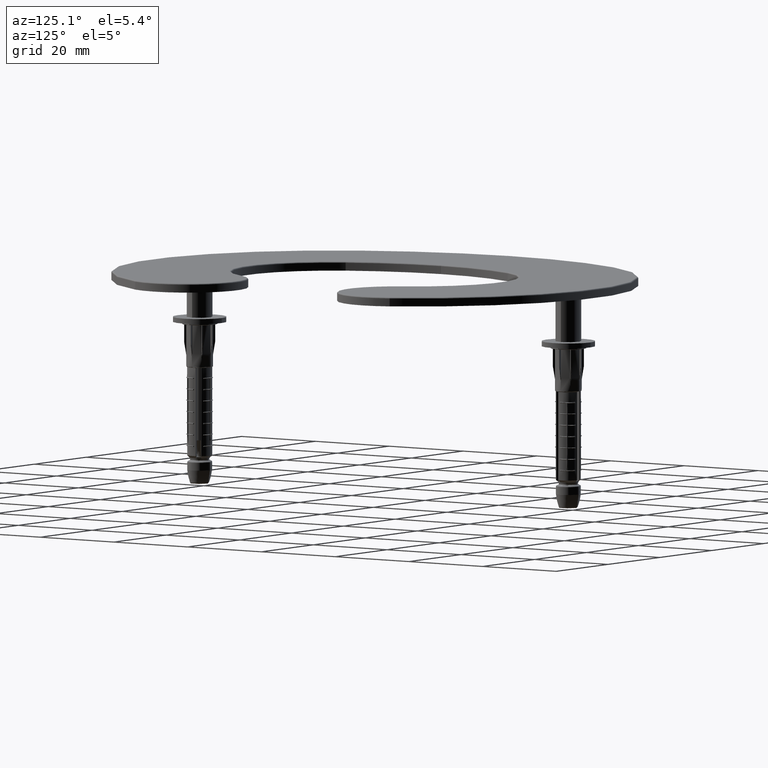
[diagram: clean part render]
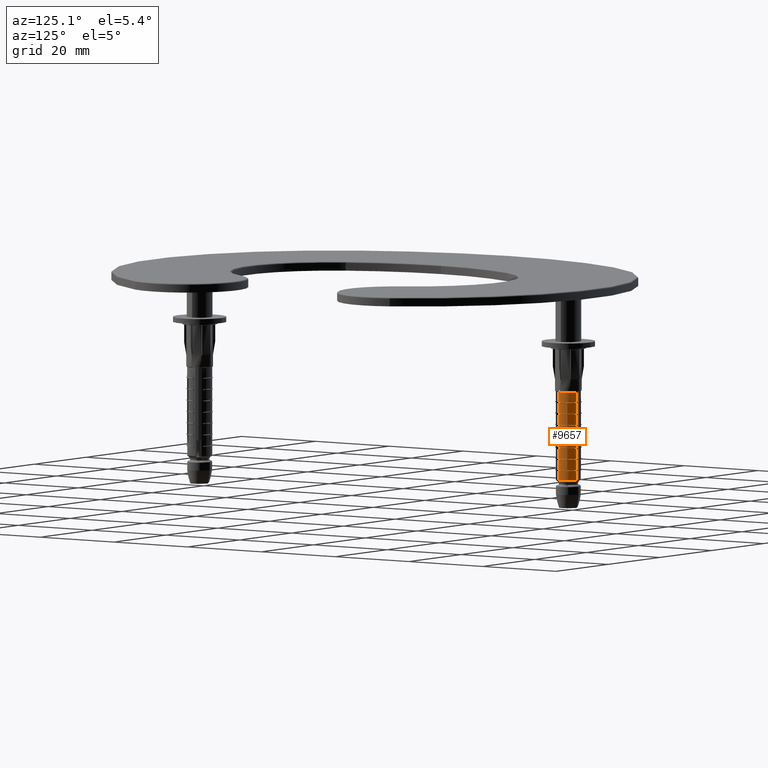
[diagram: same view with one face highlighted and labeled with its STEP entity id]
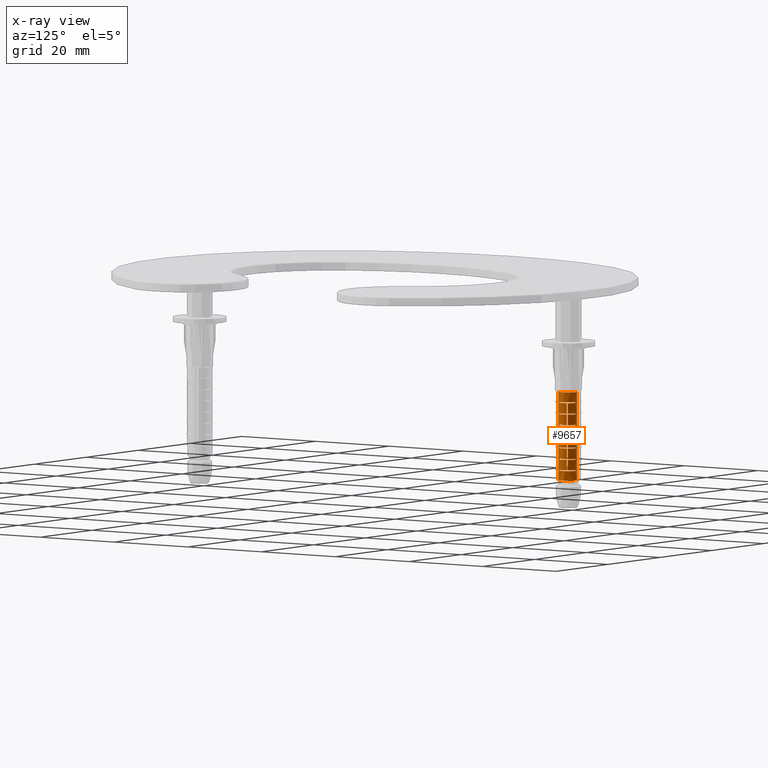
[diagram: x-ray of the same camera — body ghosted, the highlighted face saturated]
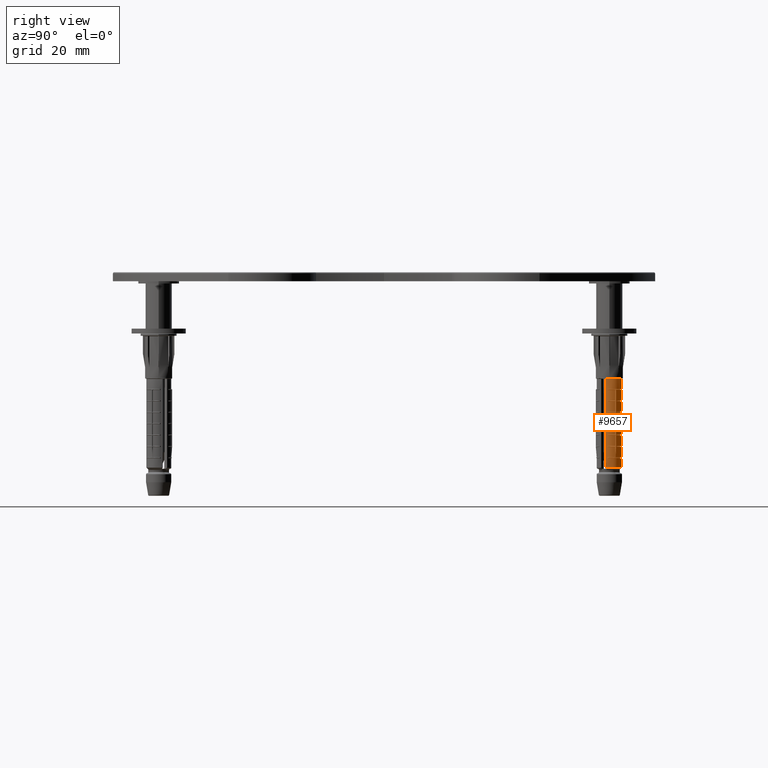
[diagram: same view with one face highlighted and labeled with its STEP entity id]
A machine part, auxiliary view. The second image highlights one B-rep face of the part: STEP entity #9657.
The next image is the same camera in x-ray: the body ghosted, the highlighted face saturated — about 0% of this face is hidden behind the body in this view.
A second angle (right view) of the same face is appended — the face is thin or edge-on in the first view.
In plain terms, the highlighted cylindrical surface (edge-blend (fillet) strip) has radius 2.8 mm, axis along (0, 0, -1).
Its self-contained STEP definition (entity closure, byte-faithful):
#8 = CARTESIAN_POINT ( 'NONE',  ( -1.016432192480563934, -2.608997048309781519, -19.89999999999999858 ) ) ;
#301 = CARTESIAN_POINT ( 'NONE',  ( -2.767673818475162140, 0.4242424242424545078, -20.10000000000000142 ) ) ;
#407 = VECTOR ( 'NONE', #25622, 1000.000000000000000 ) ;
#470 = VERTEX_POINT ( 'NONE', #18661 ) ;
#557 = DIRECTION ( 'NONE',  ( 0.8660254037844433705, 0.4999999999999920064, 0.000000000000000000 ) ) ;
#868 = DIRECTION ( 'NONE',  ( -4.540655609425253692E-18, 4.182044590197414905E-18, 1.000000000000000000 ) ) ;
#904 = VERTEX_POINT ( 'NONE', #19124 ) ;
#1011 = ORIENTED_EDGE ( 'NONE', *, *, #4333, .T. ) ;
#1043 = DIRECTION ( 'NONE',  ( 0.000000000000000000, 1.000000000000000000, 0.000000000000000000 ) ) ;
#1096 = EDGE_CURVE ( 'NONE', #25263, #36206, #3502, .T. ) ;
#1414 = VERTEX_POINT ( 'NONE', #28175 ) ;
#1519 = CIRCLE ( 'NONE', #24105, 2.799999999999999378 ) ;
#1659 = DIRECTION ( 'NONE',  ( 0.8660254037844433705, 0.4999999999999920064, 0.000000000000000000 ) ) ;
#1816 = EDGE_CURVE ( 'NONE', #21158, #7152, #6306, .T. ) ;
#1976 = VERTEX_POINT ( 'NONE', #23837 ) ;
#1983 = VECTOR ( 'NONE', #36676, 1000.000000000000000 ) ;
#2029 = VERTEX_POINT ( 'NONE', #15161 ) ;
#2221 = CARTESIAN_POINT ( 'NONE',  ( -2.361358431559908322, -1.504654896546355980, -17.37499999999999645 ) ) ;
#2265 = EDGE_CURVE ( 'NONE', #4691, #16984, #38292, .T. ) ;
#2311 = AXIS2_PLACEMENT_3D ( 'NONE', #7968, #26496, #17438 ) ;
#2346 = CARTESIAN_POINT ( 'NONE',  ( -2.675350868333212340, 0.8261342090173534602, -10.09999999999999787 ) ) ;
#2386 = VERTEX_POINT ( 'NONE', #34344 ) ;
#2472 = DIRECTION ( 'NONE',  ( 0.8660254037844433705, 0.4999999999999920064, 0.000000000000000000 ) ) ;
#2587 = CIRCLE ( 'NONE', #19328, 2.799999999999999378 ) ;
#2685 = CARTESIAN_POINT ( 'NONE',  ( -0.6222222222222226762, -2.729988920521994267, -36.00000000000000000 ) ) ;
#2766 = CARTESIAN_POINT ( 'NONE',  ( 1.141974885770451016E-16, -1.051784214434649850E-16, -25.14999999999999858 ) ) ;
#2810 = ORIENTED_EDGE ( 'NONE', *, *, #8846, .T. ) ;
#2853 = CARTESIAN_POINT ( 'NONE',  ( -0.6222222222222225652, -2.729988920521993823, -10.09999999999999787 ) ) ;
#2857 = VECTOR ( 'NONE', #29356, 1000.000000000000000 ) ;
#2865 = VECTOR ( 'NONE', #37926, 1000.000000000000000 ) ;
#2989 = EDGE_CURVE ( 'NONE', #1976, #16240, #6229, .T. ) ;
#3151 = DIRECTION ( 'NONE',  ( 0.000000000000000000, 6.803593328596414068E-18, 1.000000000000000000 ) ) ;
#3172 = VERTEX_POINT ( 'NONE', #26178 ) ;
#3324 = AXIS2_PLACEMENT_3D ( 'NONE', #13677, #35094, #35223 ) ;
#3398 = LINE ( 'NONE', #9795, #36820 ) ;
#3402 = EDGE_CURVE ( 'NONE', #11228, #28485, #13815, .T. ) ;
#3502 = LINE ( 'NONE', #10757, #9189 ) ;
#3566 = DIRECTION ( 'NONE',  ( -4.540655609425253692E-18, 4.182044590197414905E-18, 1.000000000000000000 ) ) ;
#3577 = EDGE_CURVE ( 'NONE', #23602, #22217, #5763, .T. ) ;
#3626 = EDGE_CURVE ( 'NONE', #17636, #15856, #1519, .T. ) ;
#3666 = LINE ( 'NONE', #34473, #21629 ) ;
#3816 = EDGE_LOOP ( 'NONE', ( #18561, #20490, #11437, #9603 ) ) ;
#4064 = CARTESIAN_POINT ( 'NONE',  ( 9.035904662756253783E-17, -8.322268734492854212E-17, -19.89999999999999858 ) ) ;
#4274 = CARTESIAN_POINT ( 'NONE',  ( -2.483748580117768778, -1.292668940898234364, -17.57499999999999929 ) ) ;
#4285 = CARTESIAN_POINT ( 'NONE',  ( -2.361358431559908322, -1.504654896546355980, -15.05000000000000071 ) ) ;
#4303 = DIRECTION ( 'NONE',  ( 0.000000000000000000, 6.803593328596414068E-18, 1.000000000000000000 ) ) ;
#4321 = LINE ( 'NONE', #10278, #14722 ) ;
#4326 = DIRECTION ( 'NONE',  ( -0.000000000000000000, -6.803593328596413297E-18, -1.000000000000000000 ) ) ;
#4333 = EDGE_CURVE ( 'NONE', #10365, #25432, #19835, .T. ) ;
#4379 = CARTESIAN_POINT ( 'NONE',  ( -1.016432192480563712, -2.608997048309782407, -36.00000000000000000 ) ) ;
#4431 = AXIS2_PLACEMENT_3D ( 'NONE', #16675, #26133, #25877 ) ;
#4497 = AXIS2_PLACEMENT_3D ( 'NONE', #20886, #23632, #26663 ) ;
#4545 = EDGE_CURVE ( 'NONE', #16240, #16409, #32558, .T. ) ;
#4559 = CARTESIAN_POINT ( 'NONE',  ( 7.889389121376377345E-17, -7.266302475468007665E-17, -17.37499999999999645 ) ) ;
#4578 = CARTESIAN_POINT ( 'NONE',  ( 1.018242020413613022E-16, -9.378234993517700759E-17, -22.42499999999999716 ) ) ;
#4582 = LINE ( 'NONE', #17520, #21988 ) ;
#4691 = VERTEX_POINT ( 'NONE', #9119 ) ;
#4838 = CARTESIAN_POINT ( 'NONE',  ( -2.767673818475162140, 0.4242424242424546743, -36.00000000000000000 ) ) ;
#5042 = EDGE_CURVE ( 'NONE', #13386, #1414, #26412, .T. ) ;
#5054 = ORIENTED_EDGE ( 'NONE', *, *, #16912, .T. ) ;
#5088 = DIRECTION ( 'NONE',  ( 0.8660254037844433705, 0.4999999999999920064, 0.000000000000000000 ) ) ;
#5168 = AXIS2_PLACEMENT_3D ( 'NONE', #21839, #15916, #34070 ) ;
#5172 = DIRECTION ( 'NONE',  ( -4.540655609425253692E-18, 4.182044590197414905E-18, 1.000000000000000000 ) ) ;
#5286 = CARTESIAN_POINT ( 'NONE',  ( -2.483748580117769222, -1.292668940898234808, -20.10000000000000142 ) ) ;
#5310 = CIRCLE ( 'NONE', #8137, 2.799999999999999822 ) ;
#5328 = ORIENTED_EDGE ( 'NONE', *, *, #18636, .T. ) ;
#5337 = CARTESIAN_POINT ( 'NONE',  ( -2.361358431559908766, -1.504654896546356424, -25.14999999999999858 ) ) ;
#5523 = VERTEX_POINT ( 'NONE', #35652 ) ;
#5763 = CIRCLE ( 'NONE', #4431, 2.799999999999999378 ) ;
#5811 = CARTESIAN_POINT ( 'NONE',  ( -2.483748580117769222, -1.292668940898234586, -19.89999999999999858 ) ) ;
#5885 = CARTESIAN_POINT ( 'NONE',  ( -2.767673818475161251, 0.4242424242424545633, -14.84999999999999964 ) ) ;
#5922 = CYLINDRICAL_SURFACE ( 'NONE', #17941, 2.799999999999999822 ) ;
#5923 = ORIENTED_EDGE ( 'NONE', *, *, #37827, .F. ) ;
#5958 = CIRCLE ( 'NONE', #29519, 2.799999999999999378 ) ;
#5995 = LINE ( 'NONE', #26680, #25251 ) ;
#6057 = B_SPLINE_CURVE_WITH_KNOTS ( 'NONE', 3,
 ( #11527, #14517, #36212, #24114, #24362, #36589, #6588, #33316 ),
 .UNSPECIFIED., .F., .F.,
 ( 4, 2, 2, 4 ),
 ( 0.000000000000000000, 0.0005836036533015558948, 0.0008754054799523338423, 0.001167207306603111790 ),
 .UNSPECIFIED. ) ;
#6141 = AXIS2_PLACEMENT_3D ( 'NONE', #11428, #17443, #20597 ) ;
#6207 = CIRCLE ( 'NONE', #21490, 2.799999999999999822 ) ;
#6229 = LINE ( 'NONE', #24729, #20877 ) ;
#6241 = CARTESIAN_POINT ( 'NONE',  ( 9.126717774944759751E-17, -8.405909626296804174E-17, -20.10000000000000142 ) ) ;
#6296 = DIRECTION ( 'NONE',  ( 0.8660254037844433705, 0.4999999999999920064, 0.000000000000000000 ) ) ;
#6306 = CIRCLE ( 'NONE', #12271, 2.799999999999999822 ) ;
#6509 = ORIENTED_EDGE ( 'NONE', *, *, #22331, .T. ) ;
#6588 = CARTESIAN_POINT ( 'NONE',  ( -2.384165743643222424, -1.468355839208442148, -27.37920234786985674 ) ) ;
#6593 = LINE ( 'NONE', #10348, #2865 ) ;
#6595 = DIRECTION ( 'NONE',  ( 0.000000000000000000, 6.803593328596414068E-18, 1.000000000000000000 ) ) ;
#6639 = AXIS2_PLACEMENT_3D ( 'NONE', #35896, #18125, #33134 ) ;
#6657 = ORIENTED_EDGE ( 'NONE', *, *, #27134, .T. ) ;
#6873 = CARTESIAN_POINT ( 'NONE',  ( -2.483748580117768778, -1.292668940898234364, -17.37499999999999645 ) ) ;
#6932 = CARTESIAN_POINT ( 'NONE',  ( -1.016432192480563490, -2.608997048309781519, -27.47499999999999076 ) ) ;
#6946 = CARTESIAN_POINT ( 'NONE',  ( -2.361358431559908322, -1.504654896546355980, -12.52500000000000213 ) ) ;
#7132 = VERTEX_POINT ( 'NONE', #35103 ) ;
#7152 = VERTEX_POINT ( 'NONE', #25899 ) ;
#7190 = AXIS2_PLACEMENT_3D ( 'NONE', #23387, #8144, #29200 ) ;
#7225 = CARTESIAN_POINT ( 'NONE',  ( -1.016432192480563934, -2.608997048309781963, -36.00000000000000000 ) ) ;
#7239 = CARTESIAN_POINT ( 'NONE',  ( 0.000000000000000000, -6.871629261882377608E-17, -10.09999999999999787 ) ) ;
#7312 = CARTESIAN_POINT ( 'NONE',  ( -2.474357888538981420, -1.310574868337798460, -27.08807541499556137 ) ) ;
#7335 = ORIENTED_EDGE ( 'NONE', *, *, #14913, .T. ) ;
#7380 = ORIENTED_EDGE ( 'NONE', *, *, #8217, .T. ) ;
#7401 = CARTESIAN_POINT ( 'NONE',  ( -2.361358431559908322, -1.504654896546355980, -17.57499999999999929 ) ) ;
#7425 = CIRCLE ( 'NONE', #5168, 2.799999999999999378 ) ;
#7433 = CARTESIAN_POINT ( 'NONE',  ( -2.455181414339814072, -1.346136777107122207, -27.47499999999999076 ) ) ;
#7434 = AXIS2_PLACEMENT_3D ( 'NONE', #31009, #868, #25317 ) ;
#7480 = DIRECTION ( 'NONE',  ( -0.000000000000000000, -6.803593328596414068E-18, -1.000000000000000000 ) ) ;
#7505 = VECTOR ( 'NONE', #20602, 1000.000000000000000 ) ;
#7564 = DIRECTION ( 'NONE',  ( -0.000000000000000000, -6.803593328596414068E-18, -1.000000000000000000 ) ) ;
#7567 = VERTEX_POINT ( 'NONE', #23097 ) ;
#7715 = ORIENTED_EDGE ( 'NONE', *, *, #22189, .T. ) ;
#7771 = EDGE_CURVE ( 'NONE', #25368, #24507, #12147, .T. ) ;
#7883 = DIRECTION ( 'NONE',  ( 0.000000000000000000, 6.803593328596414068E-18, 1.000000000000000000 ) ) ;
#7968 = CARTESIAN_POINT ( 'NONE',  ( 1.132893574551600419E-16, -1.043420125254254854E-16, -24.94999999999999574 ) ) ;
#8137 = AXIS2_PLACEMENT_3D ( 'NONE', #6241, #24286, #33240 ) ;
#8144 = DIRECTION ( 'NONE',  ( -4.540655609425253692E-18, 4.182044590197414905E-18, 1.000000000000000000 ) ) ;
#8206 = VERTEX_POINT ( 'NONE', #13110 ) ;
#8217 = EDGE_CURVE ( 'NONE', #2029, #19863, #10711, .T. ) ;
#8237 = LINE ( 'NONE', #37478, #14359 ) ;
#8277 = CARTESIAN_POINT ( 'NONE',  ( -2.767673818475161696, 0.4242424242424542857, -27.47499999999999076 ) ) ;
#8320 = ORIENTED_EDGE ( 'NONE', *, *, #12048, .T. ) ;
#8548 = EDGE_CURVE ( 'NONE', #11744, #3172, #5958, .T. ) ;
#8615 = DIRECTION ( 'NONE',  ( -0.000000000000000000, -6.803593328596414068E-18, -1.000000000000000000 ) ) ;
#8623 = VECTOR ( 'NONE', #17848, 1000.000000000000000 ) ;
#8671 = DIRECTION ( 'NONE',  ( -0.000000000000000000, -6.803593328596414068E-18, -1.000000000000000000 ) ) ;
#8674 = CARTESIAN_POINT ( 'NONE',  ( -2.361358431559909210, -1.504654896546356424, -36.00000000000000000 ) ) ;
#8675 = DIRECTION ( 'NONE',  ( -4.540655609425253692E-18, 4.182044590197414905E-18, 1.000000000000000000 ) ) ;
#8678 = DIRECTION ( 'NONE',  ( -4.540655609425253692E-18, 4.182044590197414905E-18, 1.000000000000000000 ) ) ;
#8831 = CARTESIAN_POINT ( 'NONE',  ( -2.424871130596440771, -1.399999999999977263, -12.32500000000000107 ) ) ;
#8846 = EDGE_CURVE ( 'NONE', #19465, #32061, #17245, .T. ) ;
#8891 = VERTEX_POINT ( 'NONE', #8 ) ;
#9119 = CARTESIAN_POINT ( 'NONE',  ( -2.767673818475161696, 0.4242424242424544523, -19.89999999999999858 ) ) ;
#9156 = VERTEX_POINT ( 'NONE', #2853 ) ;
#9189 = VECTOR ( 'NONE', #7564, 1000.000000000000000 ) ;
#9191 = CIRCLE ( 'NONE', #18955, 2.799999999999999822 ) ;
#9584 = ORIENTED_EDGE ( 'NONE', *, *, #12114, .T. ) ;
#9603 = ORIENTED_EDGE ( 'NONE', *, *, #14592, .T. ) ;
#9628 = CARTESIAN_POINT ( 'NONE',  ( 1.256626439908438660E-16, -1.157380840337134382E-16, -27.67499999999999361 ) ) ;
#9657 = ADVANCED_FACE ( 'NONE', ( #33217, #25176 ), #5922, .T. ) ;
#9752 = ORIENTED_EDGE ( 'NONE', *, *, #25674, .F. ) ;
#9777 = ORIENTED_EDGE ( 'NONE', *, *, #10400, .T. ) ;
#9795 = CARTESIAN_POINT ( 'NONE',  ( -2.483748580117769222, -1.292668940898235030, -36.00000000000000000 ) ) ;
#10033 = DIRECTION ( 'NONE',  ( 0.8660254037844433705, 0.4999999999999920064, 0.000000000000000000 ) ) ;
#10068 = CIRCLE ( 'NONE', #6639, 2.799999999999999822 ) ;
#10139 = EDGE_CURVE ( 'NONE', #34881, #5523, #22837, .T. ) ;
#10216 = CARTESIAN_POINT ( 'NONE',  ( -1.016432192480563712, -2.608997048309781963, -27.67499999999999361 ) ) ;
#10266 = DIRECTION ( 'NONE',  ( -4.540655609425253692E-18, 4.182044590197414905E-18, 1.000000000000000000 ) ) ;
#10278 = CARTESIAN_POINT ( 'NONE',  ( -2.767673818475162140, 0.4242424242424544523, -36.00000000000000000 ) ) ;
#10345 = LINE ( 'NONE', #25226, #407 ) ;
#10348 = CARTESIAN_POINT ( 'NONE',  ( -2.361358431559909210, -1.504654896546356424, -36.00000000000000000 ) ) ;
#10365 = VERTEX_POINT ( 'NONE', #22441 ) ;
#10384 = CARTESIAN_POINT ( 'NONE',  ( -2.483748580117769222, -1.292668940898234808, -26.31052289814997636 ) ) ;
#10400 = EDGE_CURVE ( 'NONE', #38363, #904, #20792, .T. ) ;
#10443 = EDGE_CURVE ( 'NONE', #24471, #13063, #21390, .T. ) ;
#10501 = DIRECTION ( 'NONE',  ( 0.8660254037844433705, 0.4999999999999920064, 0.000000000000000000 ) ) ;
#10510 = CARTESIAN_POINT ( 'NONE',  ( -2.483748580118025018, -1.292668940897744312, -26.50506116889642172 ) ) ;
#10550 = DIRECTION ( 'NONE',  ( 0.8660254037844433705, 0.4999999999999920064, 0.000000000000000000 ) ) ;
#10658 = ORIENTED_EDGE ( 'NONE', *, *, #28278, .T. ) ;
#10711 = CIRCLE ( 'NONE', #11122, 2.799999999999999378 ) ;
#10757 = CARTESIAN_POINT ( 'NONE',  ( -1.016432192480563712, -2.608997048309782407, -36.00000000000000000 ) ) ;
#11052 = CARTESIAN_POINT ( 'NONE',  ( -2.483748580117769222, -1.292668940898235030, -36.00000000000000000 ) ) ;
#11066 = AXIS2_PLACEMENT_3D ( 'NONE', #32182, #20091, #11456 ) ;
#11122 = AXIS2_PLACEMENT_3D ( 'NONE', #22571, #19395, #10501 ) ;
#11161 = ORIENTED_EDGE ( 'NONE', *, *, #7771, .T. ) ;
#11203 = CIRCLE ( 'NONE', #4497, 2.799999999999999378 ) ;
#11228 = VERTEX_POINT ( 'NONE', #20814 ) ;
#11252 = LINE ( 'NONE', #30026, #32380 ) ;
#11272 = DIRECTION ( 'NONE',  ( 0.8660254037844433705, 0.4999999999999920064, 0.000000000000000000 ) ) ;
#11323 = DIRECTION ( 'NONE',  ( -4.540655609425253692E-18, 4.182044590197414905E-18, 1.000000000000000000 ) ) ;
#11342 = DIRECTION ( 'NONE',  ( -4.540655609425253692E-18, 4.182044590197414905E-18, 1.000000000000000000 ) ) ;
#11354 = CARTESIAN_POINT ( 'NONE',  ( -1.016432192480563490, -2.608997048309781519, -12.32500000000000107 ) ) ;
#11428 = CARTESIAN_POINT ( 'NONE',  ( 0.000000000000000000, -2.024069015257432827E-16, -29.74999999999999645 ) ) ;
#11437 = ORIENTED_EDGE ( 'NONE', *, *, #28332, .T. ) ;
#11456 = DIRECTION ( 'NONE',  ( 0.8660254037844433705, 0.4999999999999920064, 0.000000000000000000 ) ) ;
#11527 = CARTESIAN_POINT ( 'NONE',  ( -2.361358431559908766, -1.504654896546356424, -26.31052289814725853 ) ) ;
#11532 = EDGE_CURVE ( 'NONE', #28485, #7132, #31699, .T. ) ;
#11710 = EDGE_CURVE ( 'NONE', #29405, #32976, #5310, .T. ) ;
#11729 = DIRECTION ( 'NONE',  ( 0.8660254037844433705, 0.4999999999999920064, 0.000000000000000000 ) ) ;
#11744 = VERTEX_POINT ( 'NONE', #5885 ) ;
#11787 = CARTESIAN_POINT ( 'NONE',  ( -2.483748580117769222, -1.292668940898234808, -25.14999999999999858 ) ) ;
#12048 = EDGE_CURVE ( 'NONE', #32061, #27368, #19422, .T. ) ;
#12114 = EDGE_CURVE ( 'NONE', #7567, #8891, #6207, .T. ) ;
#12143 = CARTESIAN_POINT ( 'NONE',  ( -1.016432192480563934, -2.608997048309782407, -22.62500000000000000 ) ) ;
#12147 = LINE ( 'NONE', #36462, #23389 ) ;
#12229 = CIRCLE ( 'NONE', #26395, 2.799999999999999822 ) ;
#12271 = AXIS2_PLACEMENT_3D ( 'NONE', #4578, #21940, #10550 ) ;
#12404 = CARTESIAN_POINT ( 'NONE',  ( -2.460687915453515284, -1.336044528726880731, -27.57499999999999574 ) ) ;
#12451 = EDGE_CURVE ( 'NONE', #470, #24471, #4321, .T. ) ;
#12955 = ORIENTED_EDGE ( 'NONE', *, *, #33119, .F. ) ;
#13063 = VERTEX_POINT ( 'NONE', #28963 ) ;
#13110 = CARTESIAN_POINT ( 'NONE',  ( -0.6222222222222225652, -2.729988920521993379, -29.74999999999999645 ) ) ;
#13134 = LINE ( 'NONE', #22707, #20178 ) ;
#13300 = DIRECTION ( 'NONE',  ( -0.000000000000000000, -6.803593328596414068E-18, -1.000000000000000000 ) ) ;
#13386 = VERTEX_POINT ( 'NONE', #28528 ) ;
#13677 = CARTESIAN_POINT ( 'NONE',  ( 1.132893574551600419E-16, -1.043420125254254854E-16, -24.94999999999999574 ) ) ;
#13815 = LINE ( 'NONE', #36534, #1983 ) ;
#14181 = CARTESIAN_POINT ( 'NONE',  ( 6.833686692185005643E-17, -6.293977108247109848E-17, -15.05000000000000071 ) ) ;
#14285 = CARTESIAN_POINT ( 'NONE',  ( -2.767673818475161251, 0.4242424242424545078, -17.37499999999999645 ) ) ;
#14312 = AXIS2_PLACEMENT_3D ( 'NONE', #26862, #35918, #23552 ) ;
#14359 = VECTOR ( 'NONE', #7883, 1000.000000000000000 ) ;
#14517 = CARTESIAN_POINT ( 'NONE',  ( -2.361358431559801296, -1.504654896546524068, -26.50506116889412667 ) ) ;
#14518 = CIRCLE ( 'NONE', #6141, 2.799999999999999822 ) ;
#14592 = EDGE_CURVE ( 'NONE', #24557, #14986, #23146, .T. ) ;
#14675 = EDGE_CURVE ( 'NONE', #470, #20100, #16545, .T. ) ;
#14722 = VECTOR ( 'NONE', #4303, 1000.000000000000000 ) ;
#14801 = CARTESIAN_POINT ( 'NONE',  ( -2.483748580117769222, -1.292668940898234808, -22.42499999999999716 ) ) ;
#14913 = EDGE_CURVE ( 'NONE', #19863, #22217, #30656, .T. ) ;
#14986 = VERTEX_POINT ( 'NONE', #25894 ) ;
#15047 = ORIENTED_EDGE ( 'NONE', *, *, #3402, .T. ) ;
#15161 = CARTESIAN_POINT ( 'NONE',  ( -2.361358431559908322, -1.504654896546355980, -14.84999999999999964 ) ) ;
#15398 = DIRECTION ( 'NONE',  ( -4.540655609425253692E-18, 4.182044590197414905E-18, 1.000000000000000000 ) ) ;
#15542 = EDGE_CURVE ( 'NONE', #23602, #17636, #6593, .T. ) ;
#15673 = LINE ( 'NONE', #2685, #34047 ) ;
#15716 = ORIENTED_EDGE ( 'NONE', *, *, #28322, .T. ) ;
#15856 = VERTEX_POINT ( 'NONE', #38782 ) ;
#15908 = LINE ( 'NONE', #23741, #26257 ) ;
#15916 = DIRECTION ( 'NONE',  ( -4.540655609425253692E-18, 4.182044590197414905E-18, 1.000000000000000000 ) ) ;
#15929 = EDGE_CURVE ( 'NONE', #13386, #21158, #19778, .T. ) ;
#16204 = DIRECTION ( 'NONE',  ( -4.540655609425253692E-18, 4.182044590197414905E-18, 1.000000000000000000 ) ) ;
#16240 = VERTEX_POINT ( 'NONE', #14285 ) ;
#16264 = AXIS2_PLACEMENT_3D ( 'NONE', #4064, #28042, #10033 ) ;
#16326 = CARTESIAN_POINT ( 'NONE',  ( 5.687171150805130437E-17, -5.238010849222262684E-17, -12.52500000000000213 ) ) ;
#16409 = VERTEX_POINT ( 'NONE', #6873 ) ;
#16438 = VERTEX_POINT ( 'NONE', #27682 ) ;
#16545 = CIRCLE ( 'NONE', #22299, 2.799999999999999822 ) ;
#16564 = CIRCLE ( 'NONE', #20536, 2.799999999999999822 ) ;
#16592 = ORIENTED_EDGE ( 'NONE', *, *, #15929, .T. ) ;
#16675 = CARTESIAN_POINT ( 'NONE',  ( 6.833686692185005643E-17, -6.293977108247109848E-17, -15.05000000000000071 ) ) ;
#16842 = VERTEX_POINT ( 'NONE', #7401 ) ;
#16853 = AXIS2_PLACEMENT_3D ( 'NONE', #26689, #8678, #11729 ) ;
#16912 = EDGE_CURVE ( 'NONE', #16842, #7567, #27757, .T. ) ;
#16933 = CARTESIAN_POINT ( 'NONE',  ( -1.016432192480563934, -2.608997048309782407, -12.52500000000000213 ) ) ;
#16984 = VERTEX_POINT ( 'NONE', #5811 ) ;
#17193 = ORIENTED_EDGE ( 'NONE', *, *, #3626, .T. ) ;
#17245 = CIRCLE ( 'NONE', #37056, 2.799999999999999822 ) ;
#17290 = CIRCLE ( 'NONE', #7190, 2.799999999999999378 ) ;
#17392 = ORIENTED_EDGE ( 'NONE', *, *, #35648, .F. ) ;
#17420 = CARTESIAN_POINT ( 'NONE',  ( 9.035904662756253783E-17, -8.322268734492854212E-17, -19.89999999999999858 ) ) ;
#17438 = DIRECTION ( 'NONE',  ( 0.8660254037844433705, 0.4999999999999920064, 0.000000000000000000 ) ) ;
#17443 = DIRECTION ( 'NONE',  ( 0.000000000000000000, 6.803593328596413297E-18, 1.000000000000000000 ) ) ;
#17520 = CARTESIAN_POINT ( 'NONE',  ( -2.767673818475162140, 0.4242424242424543968, -36.00000000000000000 ) ) ;
#17576 = CARTESIAN_POINT ( 'NONE',  ( -2.361358431559909210, -1.504654896546356424, -36.00000000000000000 ) ) ;
#17636 = VERTEX_POINT ( 'NONE', #2221 ) ;
#17848 = DIRECTION ( 'NONE',  ( 0.000000000000000000, 6.803593328596414068E-18, 1.000000000000000000 ) ) ;
#17887 = CARTESIAN_POINT ( 'NONE',  ( -2.767673818475162140, 0.4242424242424543412, -27.67499999999999361 ) ) ;
#17929 = CARTESIAN_POINT ( 'NONE',  ( -2.393379353113320729, -1.453181087163902374, -27.47499999999999076 ) ) ;
#17941 = AXIS2_PLACEMENT_3D ( 'NONE', #38508, #32457, #26667 ) ;
#18125 = DIRECTION ( 'NONE',  ( -4.540655609425253692E-18, 4.182044590197414905E-18, 1.000000000000000000 ) ) ;
#18135 = EDGE_CURVE ( 'NONE', #15856, #20499, #15908, .T. ) ;
#18239 = EDGE_CURVE ( 'NONE', #19401, #31007, #4582, .T. ) ;
#18285 = DIRECTION ( 'NONE',  ( 0.000000000000000000, 6.803593328596414068E-18, 1.000000000000000000 ) ) ;
#18298 = DIRECTION ( 'NONE',  ( -5.892084659582852829E-18, -1.020538999289456486E-17, -1.000000000000000000 ) ) ;
#18428 = DIRECTION ( 'NONE',  ( 0.8660254037844433705, 0.4999999999999920064, 0.000000000000000000 ) ) ;
#18555 = VECTOR ( 'NONE', #21652, 1000.000000000000000 ) ;
#18561 = ORIENTED_EDGE ( 'NONE', *, *, #29230, .T. ) ;
#18583 = ORIENTED_EDGE ( 'NONE', *, *, #37765, .F. ) ;
#18636 = EDGE_CURVE ( 'NONE', #25432, #25263, #11203, .T. ) ;
#18661 = CARTESIAN_POINT ( 'NONE',  ( -2.767673818475162140, 0.4242424242424544523, -25.14999999999999858 ) ) ;
#18685 = DIRECTION ( 'NONE',  ( 0.8660254037844433705, 0.4999999999999920064, 0.000000000000000000 ) ) ;
#18762 = ORIENTED_EDGE ( 'NONE', *, *, #29093, .T. ) ;
#18800 = ORIENTED_EDGE ( 'NONE', *, *, #18239, .T. ) ;
#18927 = LINE ( 'NONE', #11052, #8623 ) ;
#18955 = AXIS2_PLACEMENT_3D ( 'NONE', #25199, #10266, #31279 ) ;
#18989 = CARTESIAN_POINT ( 'NONE',  ( -2.483748580117769222, -1.292668940898235252, -36.00000000000000000 ) ) ;
#19124 = CARTESIAN_POINT ( 'NONE',  ( -2.483748580117769222, -1.292668940898234808, -26.31052289814997636 ) ) ;
#19148 = EDGE_CURVE ( 'NONE', #35519, #10365, #19605, .T. ) ;
#19206 = ORIENTED_EDGE ( 'NONE', *, *, #37025, .T. ) ;
#19328 = AXIS2_PLACEMENT_3D ( 'NONE', #16326, #24740, #18685 ) ;
#19329 = ORIENTED_EDGE ( 'NONE', *, *, #15542, .T. ) ;
#19342 = ORIENTED_EDGE ( 'NONE', *, *, #31025, .F. ) ;
#19350 = DIRECTION ( 'NONE',  ( 0.8660254037844433705, 0.4999999999999920064, 0.000000000000000000 ) ) ;
#19395 = DIRECTION ( 'NONE',  ( -4.540655609425253692E-18, 4.182044590197414905E-18, 1.000000000000000000 ) ) ;
#19397 = CIRCLE ( 'NONE', #34383, 2.799999999999999822 ) ;
#19401 = VERTEX_POINT ( 'NONE', #31469 ) ;
#19422 = LINE ( 'NONE', #4379, #23211 ) ;
#19465 = VERTEX_POINT ( 'NONE', #17929 ) ;
#19605 = LINE ( 'NONE', #31332, #29507 ) ;
#19628 = ORIENTED_EDGE ( 'NONE', *, *, #24124, .T. ) ;
#19714 = CARTESIAN_POINT ( 'NONE',  ( -2.767673818475162140, 0.4242424242424547298, -12.52500000000000213 ) ) ;
#19778 = LINE ( 'NONE', #8674, #31074 ) ;
#19835 = CIRCLE ( 'NONE', #38735, 2.799999999999999378 ) ;
#19863 = VERTEX_POINT ( 'NONE', #27742 ) ;
#20091 = DIRECTION ( 'NONE',  ( -4.540655609425253692E-18, 4.182044590197414905E-18, 1.000000000000000000 ) ) ;
#20100 = VERTEX_POINT ( 'NONE', #11787 ) ;
#20178 = VECTOR ( 'NONE', #29028, 1000.000000000000000 ) ;
#20180 = VERTEX_POINT ( 'NONE', #23449 ) ;
#20285 = CARTESIAN_POINT ( 'NONE',  ( 1.247545128689588310E-16, -1.149016751156739262E-16, -27.47499999999999076 ) ) ;
#20427 = CARTESIAN_POINT ( 'NONE',  ( -2.483748580117768778, -1.292668940898234364, -12.52500000000000213 ) ) ;
#20490 = ORIENTED_EDGE ( 'NONE', *, *, #37337, .T. ) ;
#20499 = VERTEX_POINT ( 'NONE', #33180 ) ;
#20536 = AXIS2_PLACEMENT_3D ( 'NONE', #26686, #8675, #2472 ) ;
#20597 = DIRECTION ( 'NONE',  ( 0.000000000000000000, 1.000000000000000000, 0.000000000000000000 ) ) ;
#20602 = DIRECTION ( 'NONE',  ( -0.000000000000000000, -6.803593328596414068E-18, -1.000000000000000000 ) ) ;
#20792 = B_SPLINE_CURVE_WITH_KNOTS ( 'NONE', 3,
 ( #7433, #37302, #25303, #7312, #31641, #28500, #10510, #10384 ),
 .UNSPECIFIED., .F., .F.,
 ( 4, 2, 2, 4 ),
 ( 0.000000000000000000, 0.0002919254474833850982, 0.0005838508949667701965, 0.001167701789933529768 ),
 .UNSPECIFIED. ) ;
#20814 = CARTESIAN_POINT ( 'NONE',  ( -2.361358431559908766, -1.504654896546356424, -22.62500000000000000 ) ) ;
#20877 = VECTOR ( 'NONE', #3151, 1000.000000000000000 ) ;
#20886 = CARTESIAN_POINT ( 'NONE',  ( 5.596358038616625703E-17, -5.154369957418313338E-17, -12.32500000000000107 ) ) ;
#21050 = CARTESIAN_POINT ( 'NONE',  ( -2.455181414339814072, -1.346136777107122207, -27.47499999999999076 ) ) ;
#21068 = DIRECTION ( 'NONE',  ( -4.540655609425253692E-18, 4.182044590197414905E-18, 1.000000000000000000 ) ) ;
#21139 = CIRCLE ( 'NONE', #16853, 2.799999999999999822 ) ;
#21158 = VERTEX_POINT ( 'NONE', #25240 ) ;
#21172 = LINE ( 'NONE', #17576, #7505 ) ;
#21289 = EDGE_CURVE ( 'NONE', #20180, #19465, #6057, .T. ) ;
#21390 = CIRCLE ( 'NONE', #2311, 2.799999999999999822 ) ;
#21490 = AXIS2_PLACEMENT_3D ( 'NONE', #17420, #5172, #11272 ) ;
#21629 = VECTOR ( 'NONE', #13300, 1000.000000000000000 ) ;
#21652 = DIRECTION ( 'NONE',  ( 0.000000000000000000, 6.803593328596414068E-18, 1.000000000000000000 ) ) ;
#21786 = LINE ( 'NONE', #12404, #32118 ) ;
#21831 = ORIENTED_EDGE ( 'NONE', *, *, #35528, .T. ) ;
#21839 = CARTESIAN_POINT ( 'NONE',  ( 5.687171150805130437E-17, -5.238010849222262684E-17, -12.52500000000000213 ) ) ;
#21871 = EDGE_CURVE ( 'NONE', #26474, #32976, #24229, .T. ) ;
#21940 = DIRECTION ( 'NONE',  ( -4.540655609425253692E-18, 4.182044590197414905E-18, 1.000000000000000000 ) ) ;
#21988 = VECTOR ( 'NONE', #18285, 1000.000000000000000 ) ;
#22189 = EDGE_CURVE ( 'NONE', #34881, #11744, #22791, .T. ) ;
#22217 = VERTEX_POINT ( 'NONE', #38239 ) ;
#22261 = CARTESIAN_POINT ( 'NONE',  ( 5.596358038616625703E-17, -5.154369957418313338E-17, -12.32500000000000107 ) ) ;
#22299 = AXIS2_PLACEMENT_3D ( 'NONE', #2766, #21068, #6296 ) ;
#22331 = EDGE_CURVE ( 'NONE', #31007, #26474, #9191, .T. ) ;
#22391 = ORIENTED_EDGE ( 'NONE', *, *, #3577, .F. ) ;
#22441 = CARTESIAN_POINT ( 'NONE',  ( -2.767673818475161251, 0.4242424242424545633, -12.32500000000000107 ) ) ;
#22550 = VERTEX_POINT ( 'NONE', #5337 ) ;
#22571 = CARTESIAN_POINT ( 'NONE',  ( 6.742873579996503373E-17, -6.210336216443161118E-17, -14.84999999999999964 ) ) ;
#22707 = CARTESIAN_POINT ( 'NONE',  ( -2.767673818475162140, 0.4242424242424544523, -36.00000000000000000 ) ) ;
#22791 = LINE ( 'NONE', #4838, #37853 ) ;
#22837 = CIRCLE ( 'NONE', #36590, 2.799999999999999378 ) ;
#22886 = ORIENTED_EDGE ( 'NONE', *, *, #19148, .T. ) ;
#23097 = CARTESIAN_POINT ( 'NONE',  ( -2.361358431559908766, -1.504654896546356202, -19.89999999999999858 ) ) ;
#23120 = ORIENTED_EDGE ( 'NONE', *, *, #8548, .T. ) ;
#23146 = LINE ( 'NONE', #38428, #2857 ) ;
#23211 = VECTOR ( 'NONE', #8615, 1000.000000000000000 ) ;
#23296 = ORIENTED_EDGE ( 'NONE', *, *, #5042, .F. ) ;
#23387 = CARTESIAN_POINT ( 'NONE',  ( 7.980202233564885778E-17, -7.349943367271956395E-17, -17.57499999999999929 ) ) ;
#23389 = VECTOR ( 'NONE', #6595, 1000.000000000000000 ) ;
#23449 = CARTESIAN_POINT ( 'NONE',  ( -2.361358431559908766, -1.504654896546356424, -26.31052289814725853 ) ) ;
#23552 = DIRECTION ( 'NONE',  ( 0.8660254037844433705, 0.4999999999999920064, 0.000000000000000000 ) ) ;
#23592 = CARTESIAN_POINT ( 'NONE',  ( 6.742873579996503373E-17, -6.210336216443161118E-17, -14.84999999999999964 ) ) ;
#23602 = VERTEX_POINT ( 'NONE', #4285 ) ;
#23632 = DIRECTION ( 'NONE',  ( -4.540655609425253692E-18, 4.182044590197414905E-18, 1.000000000000000000 ) ) ;
#23737 = DIRECTION ( 'NONE',  ( 0.000000000000000000, 6.803593328596414068E-18, 1.000000000000000000 ) ) ;
#23741 = CARTESIAN_POINT ( 'NONE',  ( -1.016432192480563934, -2.608997048309781963, -36.00000000000000000 ) ) ;
#23771 = EDGE_CURVE ( 'NONE', #904, #20100, #18927, .T. ) ;
#23837 = CARTESIAN_POINT ( 'NONE',  ( -2.767673818475162140, 0.4242424242424546743, -17.57499999999999929 ) ) ;
#23852 = ORIENTED_EDGE ( 'NONE', *, *, #12451, .T. ) ;
#24095 = CARTESIAN_POINT ( 'NONE',  ( -2.361358431559909210, -1.504654896546356424, -36.00000000000000000 ) ) ;
#24105 = AXIS2_PLACEMENT_3D ( 'NONE', #4559, #25587, #1659 ) ;
#24114 = CARTESIAN_POINT ( 'NONE',  ( -2.369438809451833272, -1.491903281495504885, -26.99099585964414771 ) ) ;
#24124 = EDGE_CURVE ( 'NONE', #16409, #5523, #3398, .T. ) ;
#24229 = LINE ( 'NONE', #18989, #18555 ) ;
#24236 = ORIENTED_EDGE ( 'NONE', *, *, #18135, .T. ) ;
#24286 = DIRECTION ( 'NONE',  ( -4.540655609425253692E-18, 4.182044590197414905E-18, 1.000000000000000000 ) ) ;
#24362 = CARTESIAN_POINT ( 'NONE',  ( -2.372170073811461055, -1.487569355360297108, -27.08807541499458083 ) ) ;
#24471 = VERTEX_POINT ( 'NONE', #31566 ) ;
#24507 = VERTEX_POINT ( 'NONE', #8277 ) ;
#24557 = VERTEX_POINT ( 'NONE', #2346 ) ;
#24569 = EDGE_CURVE ( 'NONE', #19401, #2386, #16564, .T. ) ;
#24611 = ORIENTED_EDGE ( 'NONE', *, *, #24569, .F. ) ;
#24729 = CARTESIAN_POINT ( 'NONE',  ( -2.767673818475162140, 0.4242424242424546188, -36.00000000000000000 ) ) ;
#24740 = DIRECTION ( 'NONE',  ( -4.540655609425253692E-18, 4.182044590197414905E-18, 1.000000000000000000 ) ) ;
#25176 = FACE_BOUND ( 'NONE', #29433, .T. ) ;
#25199 = CARTESIAN_POINT ( 'NONE',  ( 1.018242020413613022E-16, -9.378234993517700759E-17, -22.42499999999999716 ) ) ;
#25226 = CARTESIAN_POINT ( 'NONE',  ( -1.016432192480564156, -2.608997048309781963, -36.00000000000000000 ) ) ;
#25240 = CARTESIAN_POINT ( 'NONE',  ( -2.361358431559908766, -1.504654896546356424, -22.42499999999999716 ) ) ;
#25251 = VECTOR ( 'NONE', #8671, 1000.000000000000000 ) ;
#25255 = ORIENTED_EDGE ( 'NONE', *, *, #30834, .F. ) ;
#25263 = VERTEX_POINT ( 'NONE', #11354 ) ;
#25303 = CARTESIAN_POINT ( 'NONE',  ( -2.467480486578948362, -1.323477802777908829, -27.28203077829557088 ) ) ;
#25317 = DIRECTION ( 'NONE',  ( 0.8660254037844433705, 0.4999999999999920064, 0.000000000000000000 ) ) ;
#25368 = VERTEX_POINT ( 'NONE', #17887 ) ;
#25432 = VERTEX_POINT ( 'NONE', #8831 ) ;
#25467 = DIRECTION ( 'NONE',  ( 0.000000000000000000, 6.803593328596414068E-18, 1.000000000000000000 ) ) ;
#25587 = DIRECTION ( 'NONE',  ( -4.540655609425253692E-18, 4.182044590197414905E-18, 1.000000000000000000 ) ) ;
#25622 = DIRECTION ( 'NONE',  ( -0.000000000000000000, -6.803593328596414068E-18, -1.000000000000000000 ) ) ;
#25674 = EDGE_CURVE ( 'NONE', #11228, #36675, #37694, .T. ) ;
#25877 = DIRECTION ( 'NONE',  ( 0.8660254037844433705, 0.4999999999999920064, 0.000000000000000000 ) ) ;
#25894 = CARTESIAN_POINT ( 'NONE',  ( -2.675350868333212340, 0.8261342090173533492, -29.74999999999999645 ) ) ;
#25899 = CARTESIAN_POINT ( 'NONE',  ( -1.016432192480563712, -2.608997048309781963, -22.42499999999999716 ) ) ;
#25958 = ORIENTED_EDGE ( 'NONE', *, *, #28511, .F. ) ;
#26133 = DIRECTION ( 'NONE',  ( -4.540655609425253692E-18, 4.182044590197414905E-18, 1.000000000000000000 ) ) ;
#26178 = CARTESIAN_POINT ( 'NONE',  ( -2.483748580117768778, -1.292668940898234364, -14.84999999999999964 ) ) ;
#26257 = VECTOR ( 'NONE', #33467, 1000.000000000000000 ) ;
#26395 = AXIS2_PLACEMENT_3D ( 'NONE', #7239, #4326, #1043 ) ;
#26412 = CIRCLE ( 'NONE', #11066, 2.799999999999999822 ) ;
#26474 = VERTEX_POINT ( 'NONE', #14801 ) ;
#26496 = DIRECTION ( 'NONE',  ( -4.540655609425253692E-18, 4.182044590197414905E-18, 1.000000000000000000 ) ) ;
#26663 = DIRECTION ( 'NONE',  ( 0.8660254037844433705, 0.4999999999999920064, 0.000000000000000000 ) ) ;
#26667 = DIRECTION ( 'NONE',  ( 0.000000000000000000, 1.000000000000000000, 0.000000000000000000 ) ) ;
#26680 = CARTESIAN_POINT ( 'NONE',  ( -1.016432192480563712, -2.608997048309782407, -36.00000000000000000 ) ) ;
#26686 = CARTESIAN_POINT ( 'NONE',  ( 1.027323331632463865E-16, -9.461875885321650721E-17, -22.62500000000000000 ) ) ;
#26689 = CARTESIAN_POINT ( 'NONE',  ( 1.141974885770451016E-16, -1.051784214434649850E-16, -25.14999999999999858 ) ) ;
#26862 = CARTESIAN_POINT ( 'NONE',  ( 7.889389121376377345E-17, -7.266302475468007665E-17, -17.37499999999999645 ) ) ;
#26978 = AXIS2_PLACEMENT_3D ( 'NONE', #32081, #11342, #32599 ) ;
#27014 = DIRECTION ( 'NONE',  ( -0.000000000000000000, -6.803593328596414068E-18, -1.000000000000000000 ) ) ;
#27092 = DIRECTION ( 'NONE',  ( -0.000000000000000000, -6.803593328596414068E-18, -1.000000000000000000 ) ) ;
#27134 = EDGE_CURVE ( 'NONE', #38513, #2029, #21172, .T. ) ;
#27368 = VERTEX_POINT ( 'NONE', #10216 ) ;
#27371 = ORIENTED_EDGE ( 'NONE', *, *, #23771, .T. ) ;
#27441 = ORIENTED_EDGE ( 'NONE', *, *, #11532, .T. ) ;
#27682 = CARTESIAN_POINT ( 'NONE',  ( -1.016432192480563712, -2.608997048309781963, -25.14999999999999858 ) ) ;
#27742 = CARTESIAN_POINT ( 'NONE',  ( -1.016432192480563712, -2.608997048309781519, -14.84999999999999964 ) ) ;
#27757 = LINE ( 'NONE', #24095, #28703 ) ;
#28042 = DIRECTION ( 'NONE',  ( -4.540655609425253692E-18, 4.182044590197414905E-18, 1.000000000000000000 ) ) ;
#28175 = CARTESIAN_POINT ( 'NONE',  ( -1.016432192480564378, -2.608997048309782407, -20.10000000000000142 ) ) ;
#28278 = EDGE_CURVE ( 'NONE', #22550, #20180, #3666, .T. ) ;
#28322 = EDGE_CURVE ( 'NONE', #8891, #1414, #10345, .T. ) ;
#28332 = EDGE_CURVE ( 'NONE', #9156, #24557, #12229, .T. ) ;
#28485 = VERTEX_POINT ( 'NONE', #32605 ) ;
#28500 = CARTESIAN_POINT ( 'NONE',  ( -2.482270526863567195, -1.295529128873127211, -26.69959461916819521 ) ) ;
#28511 = EDGE_CURVE ( 'NONE', #22550, #16438, #21139, .T. ) ;
#28528 = CARTESIAN_POINT ( 'NONE',  ( -2.361358431559908766, -1.504654896546356424, -20.10000000000000142 ) ) ;
#28703 = VECTOR ( 'NONE', #32914, 1000.000000000000000 ) ;
#28766 = ORIENTED_EDGE ( 'NONE', *, *, #1816, .T. ) ;
#28939 = CARTESIAN_POINT ( 'NONE',  ( -2.483748580117769222, -1.292668940898235030, -36.00000000000000000 ) ) ;
#28963 = CARTESIAN_POINT ( 'NONE',  ( -2.460687915453515284, -1.336044528726880287, -24.94999999999999574 ) ) ;
#29028 = DIRECTION ( 'NONE',  ( 0.000000000000000000, 6.803593328596414068E-18, 1.000000000000000000 ) ) ;
#29093 = EDGE_CURVE ( 'NONE', #29405, #4691, #13134, .T. ) ;
#29200 = DIRECTION ( 'NONE',  ( 0.8660254037844433705, 0.4999999999999920064, 0.000000000000000000 ) ) ;
#29230 = EDGE_CURVE ( 'NONE', #14986, #8206, #14518, .T. ) ;
#29356 = DIRECTION ( 'NONE',  ( -0.000000000000000000, -6.803593328596414068E-18, -1.000000000000000000 ) ) ;
#29405 = VERTEX_POINT ( 'NONE', #301 ) ;
#29433 = EDGE_LOOP ( 'NONE', ( #10658, #36650, #2810, #8320, #5923, #11161, #19206, #9777, #27371, #36041, #23852, #38524, #18583, #24611, #18800, #6509, #35781, #35370, #18762, #37270, #32301, #17392, #35114, #34029, #19628, #32592, #7715, #23120, #21831, #12955, #22886, #1011, #5328, #32943, #25255, #6657, #7380, #7335, #22391, #19329, #17193, #24236, #19342, #5054, #9584, #15716, #23296, #16592, #28766, #31311, #9752, #15047, #27441, #37615, #25958 ) ) ;
#29507 = VECTOR ( 'NONE', #34361, 1000.000000000000000 ) ;
#29519 = AXIS2_PLACEMENT_3D ( 'NONE', #23592, #3566, #557 ) ;
#29720 = VECTOR ( 'NONE', #7480, 1000.000000000000000 ) ;
#29871 = CIRCLE ( 'NONE', #26978, 2.799999999999999378 ) ;
#30026 = CARTESIAN_POINT ( 'NONE',  ( -1.016432192480563712, -2.608997048309782407, -36.00000000000000000 ) ) ;
#30627 = EDGE_CURVE ( 'NONE', #7132, #16438, #11252, .T. ) ;
#30656 = LINE ( 'NONE', #7225, #29720 ) ;
#30834 = EDGE_CURVE ( 'NONE', #38513, #36206, #7425, .T. ) ;
#30982 = EDGE_CURVE ( 'NONE', #7152, #36675, #5995, .T. ) ;
#31007 = VERTEX_POINT ( 'NONE', #38135 ) ;
#31009 = CARTESIAN_POINT ( 'NONE',  ( 1.027323331632463865E-16, -9.461875885321650721E-17, -22.62500000000000000 ) ) ;
#31025 = EDGE_CURVE ( 'NONE', #16842, #20499, #17290, .T. ) ;
#31074 = VECTOR ( 'NONE', #27092, 1000.000000000000000 ) ;
#31279 = DIRECTION ( 'NONE',  ( 0.8660254037844433705, 0.4999999999999920064, 0.000000000000000000 ) ) ;
#31311 = ORIENTED_EDGE ( 'NONE', *, *, #30982, .T. ) ;
#31332 = CARTESIAN_POINT ( 'NONE',  ( -2.767673818475162140, 0.4242424242424546743, -36.00000000000000000 ) ) ;
#31469 = CARTESIAN_POINT ( 'NONE',  ( -2.767673818475162140, 0.4242424242424544523, -22.62500000000000000 ) ) ;
#31566 = CARTESIAN_POINT ( 'NONE',  ( -2.767673818475161696, 0.4242424242424543968, -24.94999999999999574 ) ) ;
#31641 = CARTESIAN_POINT ( 'NONE',  ( -2.476745546490385141, -1.306042560950300802, -26.99099585964534498 ) ) ;
#31699 = CIRCLE ( 'NONE', #3324, 2.799999999999999822 ) ;
#31820 = DIRECTION ( 'NONE',  ( 0.000000000000000000, 6.803593328596414068E-18, 1.000000000000000000 ) ) ;
#32061 = VERTEX_POINT ( 'NONE', #6932 ) ;
#32081 = CARTESIAN_POINT ( 'NONE',  ( 7.980202233564885778E-17, -7.349943367271956395E-17, -17.57499999999999929 ) ) ;
#32118 = VECTOR ( 'NONE', #18298, 1000.000000000000000 ) ;
#32182 = CARTESIAN_POINT ( 'NONE',  ( 9.126717774944759751E-17, -8.405909626296804174E-17, -20.10000000000000142 ) ) ;
#32301 = ORIENTED_EDGE ( 'NONE', *, *, #35586, .T. ) ;
#32347 = DIRECTION ( 'NONE',  ( 0.000000000000000000, 6.803593328596414068E-18, 1.000000000000000000 ) ) ;
#32380 = VECTOR ( 'NONE', #27014, 1000.000000000000000 ) ;
#32457 = DIRECTION ( 'NONE',  ( -0.000000000000000000, -6.803593328596413297E-18, -1.000000000000000000 ) ) ;
#32558 = CIRCLE ( 'NONE', #14312, 2.799999999999999378 ) ;
#32592 = ORIENTED_EDGE ( 'NONE', *, *, #10139, .F. ) ;
#32599 = DIRECTION ( 'NONE',  ( 0.8660254037844433705, 0.4999999999999920064, 0.000000000000000000 ) ) ;
#32605 = CARTESIAN_POINT ( 'NONE',  ( -2.361358431559908766, -1.504654896546356424, -24.94999999999999574 ) ) ;
#32914 = DIRECTION ( 'NONE',  ( -0.000000000000000000, -6.803593328596414068E-18, -1.000000000000000000 ) ) ;
#32943 = ORIENTED_EDGE ( 'NONE', *, *, #1096, .T. ) ;
#32976 = VERTEX_POINT ( 'NONE', #5286 ) ;
#33119 = EDGE_CURVE ( 'NONE', #35519, #35083, #2587, .T. ) ;
#33134 = DIRECTION ( 'NONE',  ( 0.8660254037844433705, 0.4999999999999920064, 0.000000000000000000 ) ) ;
#33180 = CARTESIAN_POINT ( 'NONE',  ( -1.016432192480564156, -2.608997048309782407, -17.57499999999999929 ) ) ;
#33192 = VECTOR ( 'NONE', #31820, 1000.000000000000000 ) ;
#33217 = FACE_OUTER_BOUND ( 'NONE', #3816, .T. ) ;
#33240 = DIRECTION ( 'NONE',  ( 0.8660254037844433705, 0.4999999999999920064, 0.000000000000000000 ) ) ;
#33316 = CARTESIAN_POINT ( 'NONE',  ( -2.393379353113320729, -1.453181087163902374, -27.47499999999999076 ) ) ;
#33467 = DIRECTION ( 'NONE',  ( -0.000000000000000000, -6.803593328596414068E-18, -1.000000000000000000 ) ) ;
#34029 = ORIENTED_EDGE ( 'NONE', *, *, #4545, .T. ) ;
#34047 = VECTOR ( 'NONE', #23737, 1000.000000000000000 ) ;
#34070 = DIRECTION ( 'NONE',  ( 0.8660254037844433705, 0.4999999999999920064, 0.000000000000000000 ) ) ;
#34344 = CARTESIAN_POINT ( 'NONE',  ( -2.460687915453515728, -1.336044528726880731, -22.62500000000000000 ) ) ;
#34361 = DIRECTION ( 'NONE',  ( 0.000000000000000000, 6.803593328596414068E-18, 1.000000000000000000 ) ) ;
#34383 = AXIS2_PLACEMENT_3D ( 'NONE', #9628, #15398, #18428 ) ;
#34473 = CARTESIAN_POINT ( 'NONE',  ( -2.361358431559909210, -1.504654896546356424, -36.00000000000000000 ) ) ;
#34881 = VERTEX_POINT ( 'NONE', #38467 ) ;
#35024 = DIRECTION ( 'NONE',  ( 0.8660254037844433705, 0.4999999999999920064, 0.000000000000000000 ) ) ;
#35074 = LINE ( 'NONE', #28939, #33192 ) ;
#35083 = VERTEX_POINT ( 'NONE', #20427 ) ;
#35094 = DIRECTION ( 'NONE',  ( -4.540655609425253692E-18, 4.182044590197414905E-18, 1.000000000000000000 ) ) ;
#35103 = CARTESIAN_POINT ( 'NONE',  ( -1.016432192480563490, -2.608997048309781519, -24.94999999999999574 ) ) ;
#35114 = ORIENTED_EDGE ( 'NONE', *, *, #2989, .T. ) ;
#35223 = DIRECTION ( 'NONE',  ( 0.8660254037844433705, 0.4999999999999920064, 0.000000000000000000 ) ) ;
#35370 = ORIENTED_EDGE ( 'NONE', *, *, #11710, .F. ) ;
#35519 = VERTEX_POINT ( 'NONE', #19714 ) ;
#35528 = EDGE_CURVE ( 'NONE', #3172, #35083, #35074, .T. ) ;
#35586 = EDGE_CURVE ( 'NONE', #16984, #36007, #8237, .T. ) ;
#35648 = EDGE_CURVE ( 'NONE', #1976, #36007, #29871, .T. ) ;
#35652 = CARTESIAN_POINT ( 'NONE',  ( -2.483748580117768778, -1.292668940898234364, -15.05000000000000071 ) ) ;
#35781 = ORIENTED_EDGE ( 'NONE', *, *, #21871, .T. ) ;
#35896 = CARTESIAN_POINT ( 'NONE',  ( 1.247545128689588310E-16, -1.149016751156739262E-16, -27.47499999999999076 ) ) ;
#35918 = DIRECTION ( 'NONE',  ( -4.540655609425253692E-18, 4.182044590197414905E-18, 1.000000000000000000 ) ) ;
#36007 = VERTEX_POINT ( 'NONE', #4274 ) ;
#36041 = ORIENTED_EDGE ( 'NONE', *, *, #14675, .F. ) ;
#36206 = VERTEX_POINT ( 'NONE', #16933 ) ;
#36212 = CARTESIAN_POINT ( 'NONE',  ( -2.363096400378637441, -1.501944770892664760, -26.69959461916634424 ) ) ;
#36462 = CARTESIAN_POINT ( 'NONE',  ( -2.767673818475162140, 0.4242424242424543412, -36.00000000000000000 ) ) ;
#36534 = CARTESIAN_POINT ( 'NONE',  ( -2.361358431559909210, -1.504654896546356424, -36.00000000000000000 ) ) ;
#36589 = CARTESIAN_POINT ( 'NONE',  ( -2.379905641839956676, -1.475161883330798451, -27.28203077829503442 ) ) ;
#36590 = AXIS2_PLACEMENT_3D ( 'NONE', #14181, #11323, #5088 ) ;
#36650 = ORIENTED_EDGE ( 'NONE', *, *, #21289, .T. ) ;
#36675 = VERTEX_POINT ( 'NONE', #12143 ) ;
#36676 = DIRECTION ( 'NONE',  ( -0.000000000000000000, -6.803593328596414068E-18, -1.000000000000000000 ) ) ;
#36820 = VECTOR ( 'NONE', #32347, 1000.000000000000000 ) ;
#37025 = EDGE_CURVE ( 'NONE', #24507, #38363, #10068, .T. ) ;
#37056 = AXIS2_PLACEMENT_3D ( 'NONE', #20285, #38054, #35024 ) ;
#37270 = ORIENTED_EDGE ( 'NONE', *, *, #2265, .T. ) ;
#37302 = CARTESIAN_POINT ( 'NONE',  ( -2.463716330369619456, -1.330570181226455873, -27.37920234786883356 ) ) ;
#37337 = EDGE_CURVE ( 'NONE', #8206, #9156, #15673, .T. ) ;
#37478 = CARTESIAN_POINT ( 'NONE',  ( -2.483748580117769222, -1.292668940898235030, -36.00000000000000000 ) ) ;
#37615 = ORIENTED_EDGE ( 'NONE', *, *, #30627, .T. ) ;
#37694 = CIRCLE ( 'NONE', #7434, 2.799999999999999822 ) ;
#37765 = EDGE_CURVE ( 'NONE', #2386, #13063, #21786, .T. ) ;
#37827 = EDGE_CURVE ( 'NONE', #25368, #27368, #19397, .T. ) ;
#37853 = VECTOR ( 'NONE', #25467, 1000.000000000000000 ) ;
#37926 = DIRECTION ( 'NONE',  ( -0.000000000000000000, -6.803593328596414068E-18, -1.000000000000000000 ) ) ;
#38054 = DIRECTION ( 'NONE',  ( -4.540655609425253692E-18, 4.182044590197414905E-18, 1.000000000000000000 ) ) ;
#38135 = CARTESIAN_POINT ( 'NONE',  ( -2.767673818475161696, 0.4242424242424543968, -22.42499999999999716 ) ) ;
#38239 = CARTESIAN_POINT ( 'NONE',  ( -1.016432192480564156, -2.608997048309782407, -15.05000000000000071 ) ) ;
#38292 = CIRCLE ( 'NONE', #16264, 2.799999999999999822 ) ;
#38363 = VERTEX_POINT ( 'NONE', #21050 ) ;
#38428 = CARTESIAN_POINT ( 'NONE',  ( -2.675350868333212784, 0.8261342090173533492, -36.00000000000000000 ) ) ;
#38467 = CARTESIAN_POINT ( 'NONE',  ( -2.767673818475162140, 0.4242424242424547298, -15.05000000000000071 ) ) ;
#38508 = CARTESIAN_POINT ( 'NONE',  ( 0.000000000000000000, -2.449293598294708880E-16, -36.00000000000000000 ) ) ;
#38513 = VERTEX_POINT ( 'NONE', #6946 ) ;
#38524 = ORIENTED_EDGE ( 'NONE', *, *, #10443, .T. ) ;
#38735 = AXIS2_PLACEMENT_3D ( 'NONE', #22261, #16204, #19350 ) ;
#38782 = CARTESIAN_POINT ( 'NONE',  ( -1.016432192480563712, -2.608997048309781519, -17.37499999999999645 ) ) ;